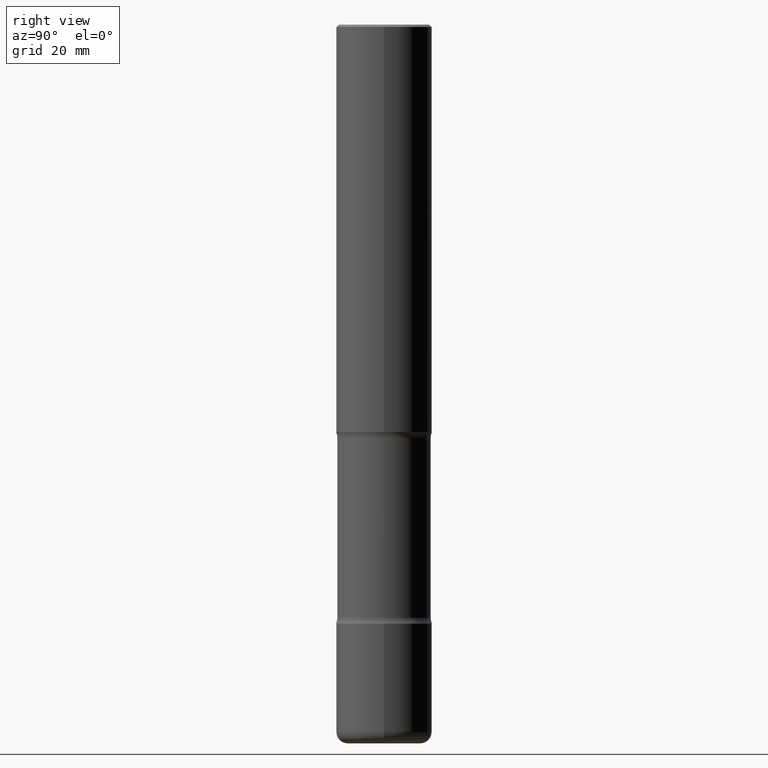
[diagram: clean part render]
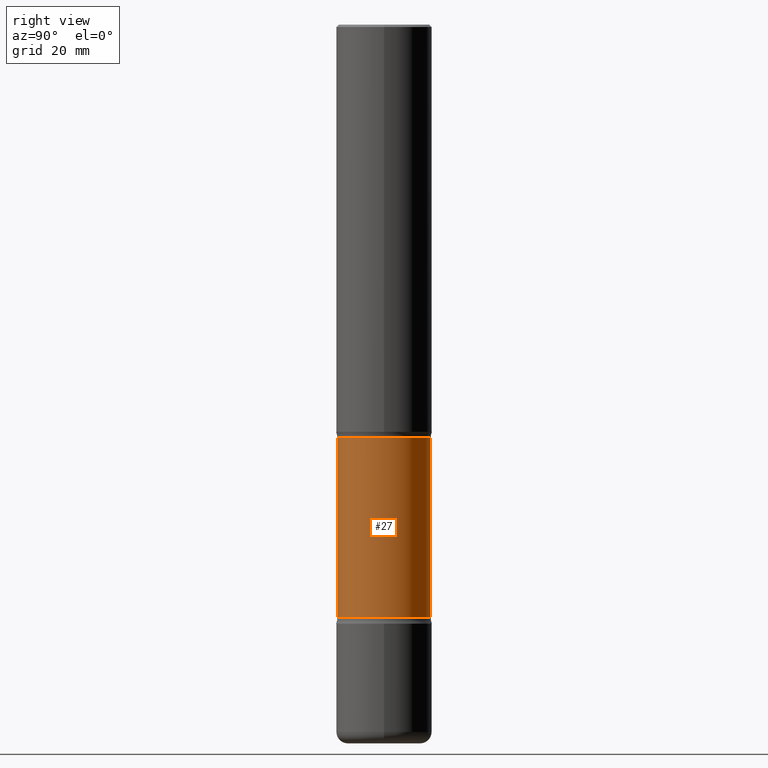
[diagram: same view with one face highlighted and labeled with its STEP entity id]
A machine part, right view. The second image highlights one B-rep face of the part: STEP entity #27.
In plain terms, the highlighted cylindrical surface (partial cylindrical patch) has radius 9.7409 mm, axis along (0, -0, -1).
Its self-contained STEP definition (entity closure, byte-faithful):
#19 = VERTEX_POINT ( 'NONE', #378 ) ;
#27 = ADVANCED_FACE ( 'NONE', ( #145 ), #290, .T. ) ;
#40 = DIRECTION ( 'NONE',  ( 2.538779888472273425E-29, -3.357854558070984121E-15, -1.000000000000000000 ) ) ;
#49 = EDGE_CURVE ( 'NONE', #527, #19, #455, .T. ) ;
#51 = AXIS2_PLACEMENT_3D ( 'NONE', #298, #40, #206 ) ;
#85 = ORIENTED_EDGE ( 'NONE', *, *, #257, .T. ) ;
#145 = FACE_OUTER_BOUND ( 'NONE', #542, .T. ) ;
#157 = VECTOR ( 'NONE', #340, 39.37007874015748143 ) ;
#178 = ORIENTED_EDGE ( 'NONE', *, *, #221, .F. ) ;
#203 = CARTESIAN_POINT ( 'NONE',  ( -2.665989521933937322E-15, -0.3835000000000121645, -3.395856647682591323 ) ) ;
#206 = DIRECTION ( 'NONE',  ( 6.982962677686265922E-15, 1.000000000000000000, -2.849385130288670267E-15 ) ) ;
#215 = DIRECTION ( 'NONE',  ( 6.982962677686265922E-15, 1.000000000000000000, -2.849385130288670661E-15 ) ) ;
#221 = EDGE_CURVE ( 'NONE', #19, #292, #549, .T. ) ;
#228 = EDGE_CURVE ( 'NONE', #527, #405, #346, .T. ) ;
#241 = ORIENTED_EDGE ( 'NONE', *, *, #49, .F. ) ;
#257 = EDGE_CURVE ( 'NONE', #405, #292, #428, .T. ) ;
#290 = CYLINDRICAL_SURFACE ( 'NONE', #314, 0.3835000000000000075 ) ;
#292 = VERTEX_POINT ( 'NONE', #471 ) ;
#293 = VECTOR ( 'NONE', #463, 39.37007874015748143 ) ;
#298 = CARTESIAN_POINT ( 'NONE',  ( 8.162130063119982422E-29, -1.206039683651260596E-14, -3.395856647682592211 ) ) ;
#314 = AXIS2_PLACEMENT_3D ( 'NONE', #484, #382, #492 ) ;
#334 = CARTESIAN_POINT ( 'NONE',  ( 2.677966186892827866E-15, 0.3834999999999795239, -5.905500000000001748 ) ) ;
#340 = DIRECTION ( 'NONE',  ( 2.538779888472273425E-29, -3.357854558070983727E-15, -1.000000000000000000 ) ) ;
#346 = CIRCLE ( 'NONE', #51, 0.3835000000000000631 ) ;
#364 = ORIENTED_EDGE ( 'NONE', *, *, #228, .T. ) ;
#378 = CARTESIAN_POINT ( 'NONE',  ( 2.677966186892801834E-15, 0.3834999999999830211, -4.871743352317410292 ) ) ;
#382 = DIRECTION ( 'NONE',  ( 2.538779888472273425E-29, -3.357854558070984121E-15, -1.000000000000000000 ) ) ;
#398 = CARTESIAN_POINT ( 'NONE',  ( -2.631000982145236803E-15, -0.3835000000000204912, -5.905499999999999972 ) ) ;
#405 = VERTEX_POINT ( 'NONE', #203 ) ;
#414 = CARTESIAN_POINT ( 'NONE',  ( 2.677966186892764757E-15, 0.3834999999999880171, -3.395856647682593543 ) ) ;
#428 = LINE ( 'NONE', #398, #293 ) ;
#455 = LINE ( 'NONE', #334, #157 ) ;
#463 = DIRECTION ( 'NONE',  ( 2.538779888472273425E-29, -3.357854558070983727E-15, -1.000000000000000000 ) ) ;
#471 = CARTESIAN_POINT ( 'NONE',  ( -2.665989521933896696E-15, -0.3835000000000170495, -4.871743352317407627 ) ) ;
#484 = CARTESIAN_POINT ( 'NONE',  ( 1.453356213322155395E-28, -2.048741420622416123E-14, -5.905500000000000860 ) ) ;
#492 = DIRECTION ( 'NONE',  ( 6.982962677686265922E-15, 1.000000000000000000, -2.849385130288670661E-15 ) ) ;
#505 = CARTESIAN_POINT ( 'NONE',  ( 1.190908154651047396E-28, -1.701620973486698988E-14, -4.871743352317408515 ) ) ;
#527 = VERTEX_POINT ( 'NONE', #414 ) ;
#528 = AXIS2_PLACEMENT_3D ( 'NONE', #505, #553, #215 ) ;
#542 = EDGE_LOOP ( 'NONE', ( #364, #85, #178, #241 ) ) ;
#549 = CIRCLE ( 'NONE', #528, 0.3835000000000000075 ) ;
#553 = DIRECTION ( 'NONE',  ( 2.538779888472273425E-29, -3.357854558070984121E-15, -1.000000000000000000 ) ) ;